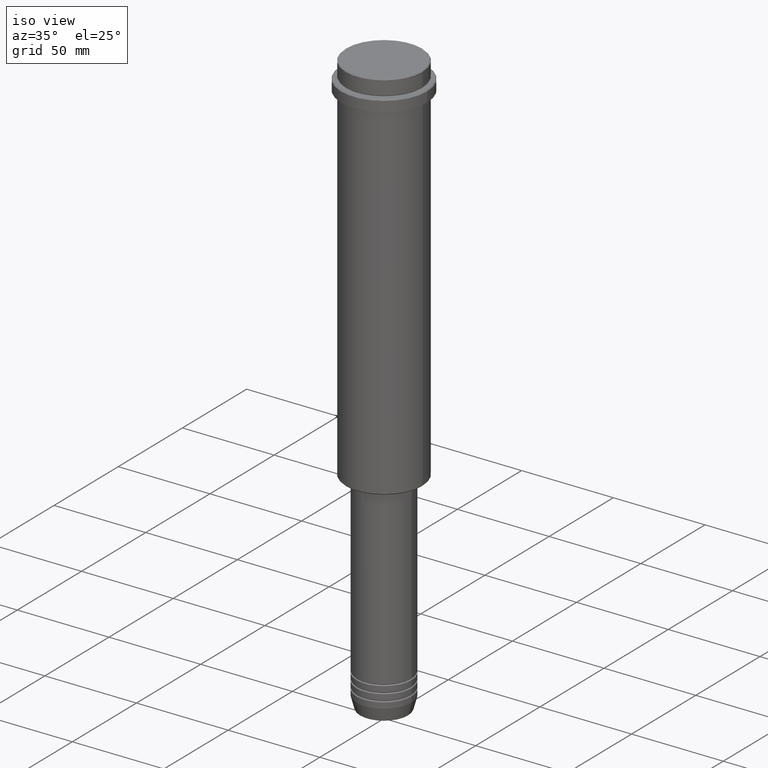
[diagram: clean part render]
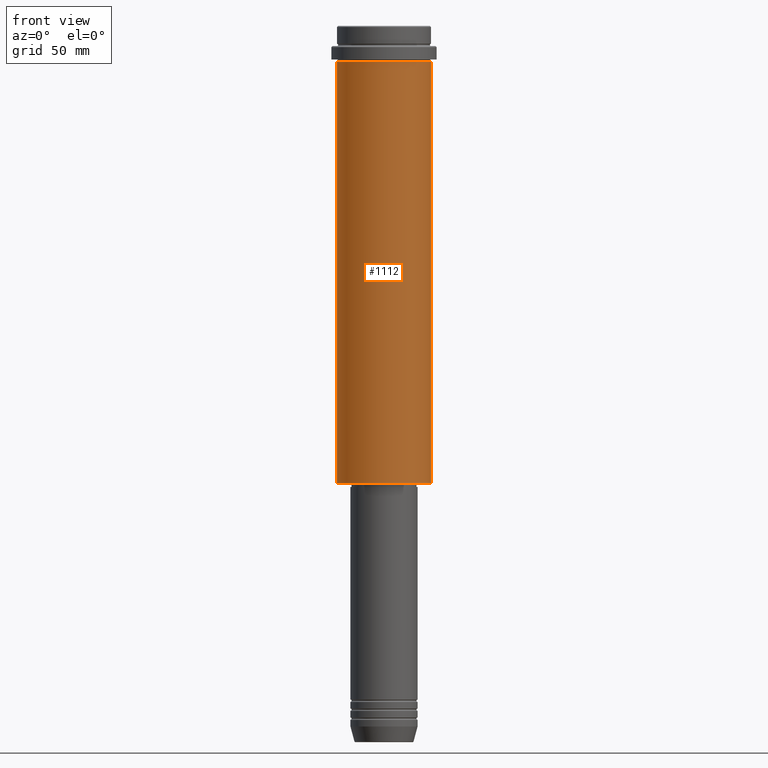
[diagram: tour spotlight — one face highlighted and labeled with its STEP entity id]
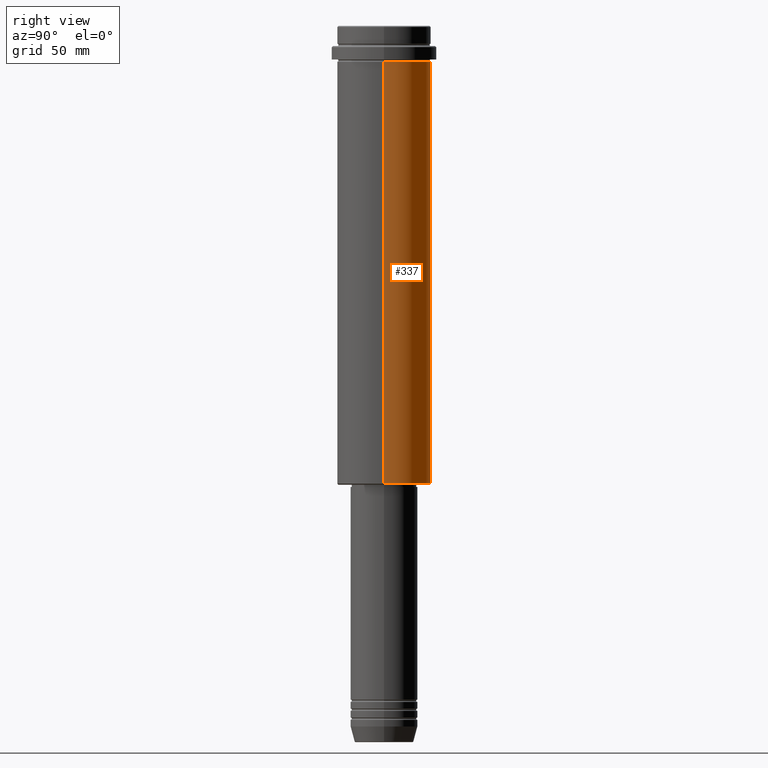
[diagram: tour spotlight — one face highlighted and labeled with its STEP entity id]
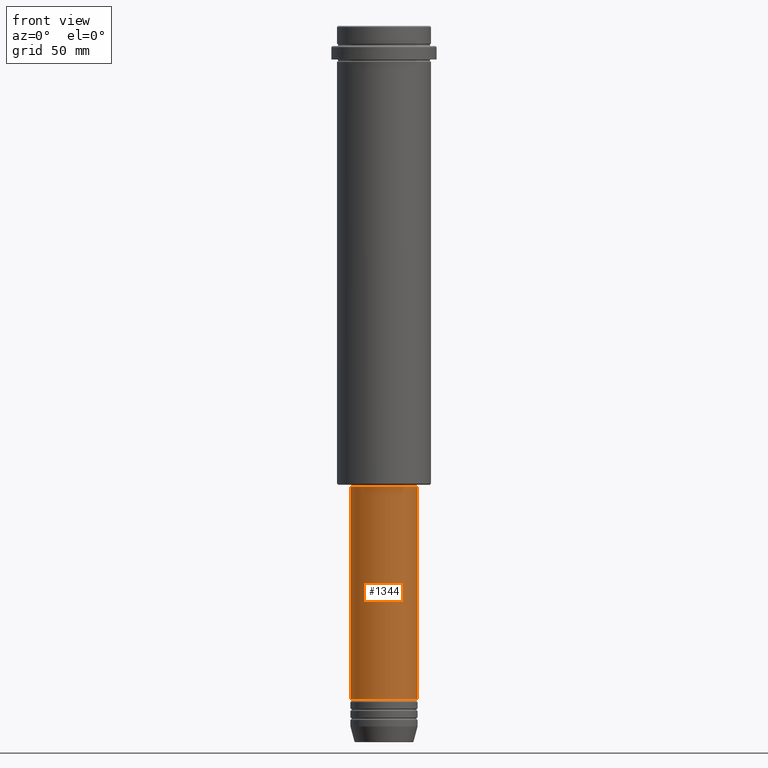
[diagram: tour spotlight — one face highlighted and labeled with its STEP entity id]
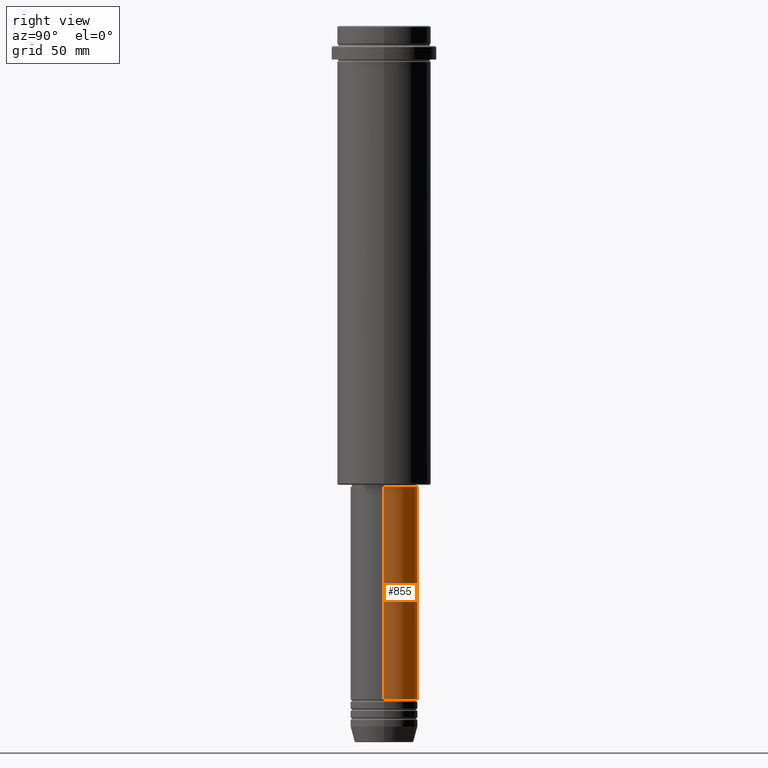
[diagram: tour spotlight — one face highlighted and labeled with its STEP entity id]
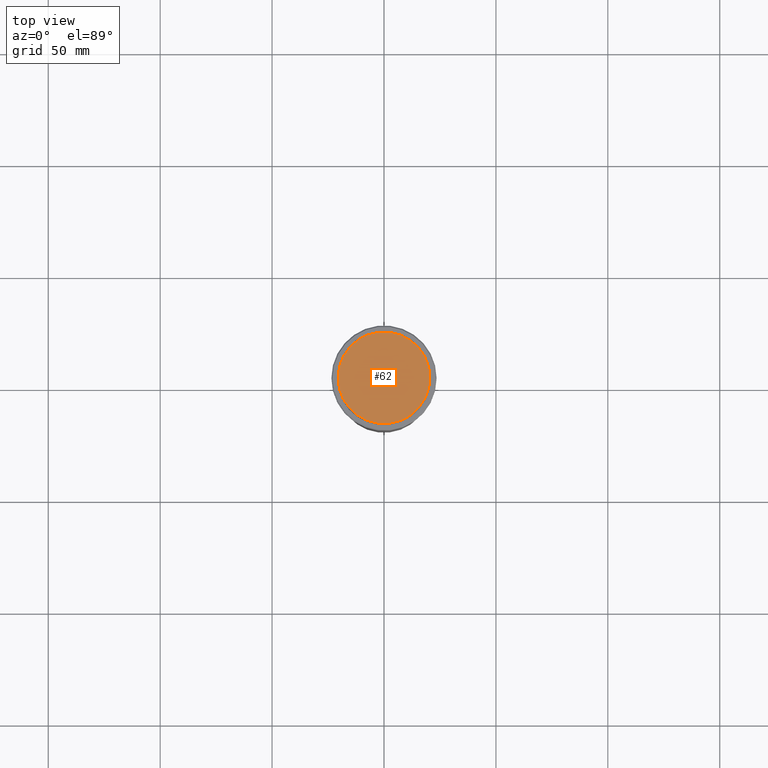
[diagram: tour spotlight — one face highlighted and labeled with its STEP entity id]
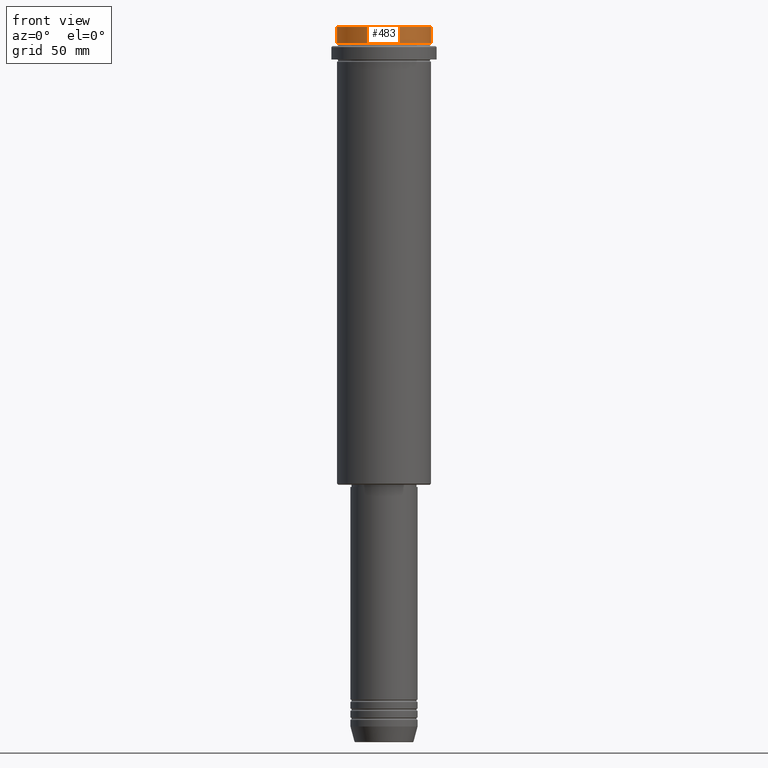
[diagram: tour spotlight — one face highlighted and labeled with its STEP entity id]
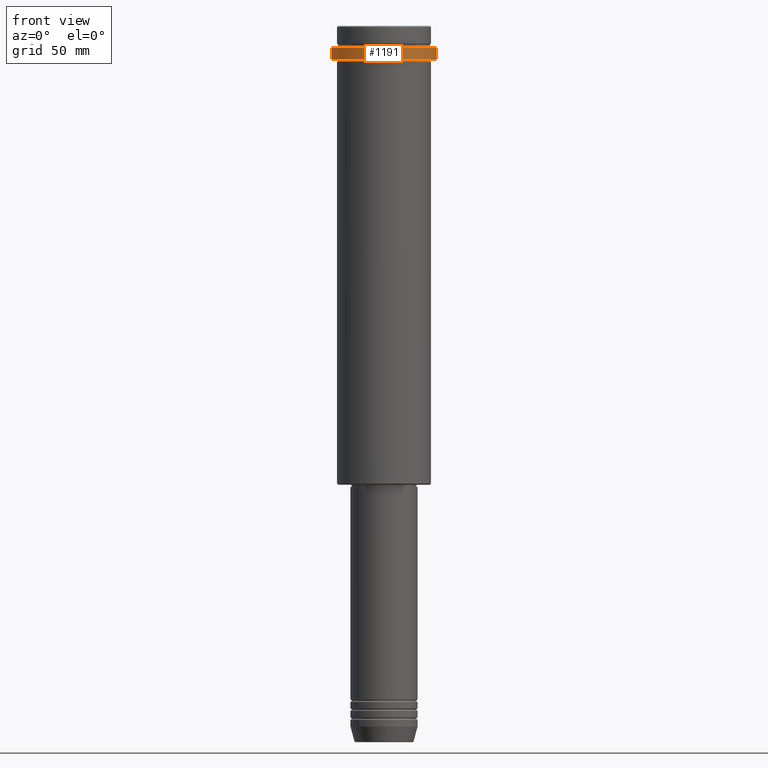
[diagram: tour spotlight — one face highlighted and labeled with its STEP entity id]
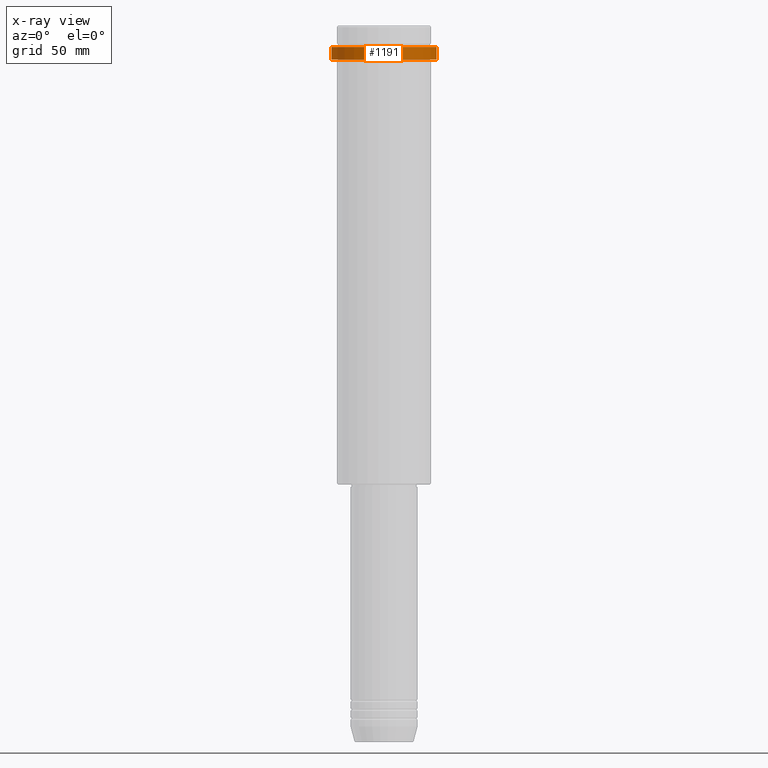
[diagram: x-ray of the same camera — body ghosted, this tour face saturated]
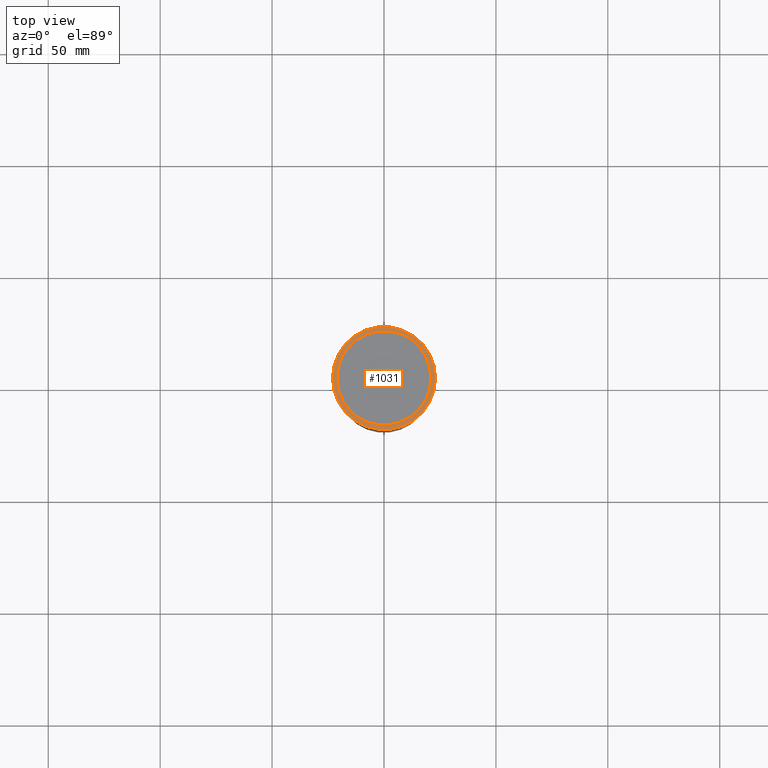
[diagram: tour spotlight — one face highlighted and labeled with its STEP entity id]
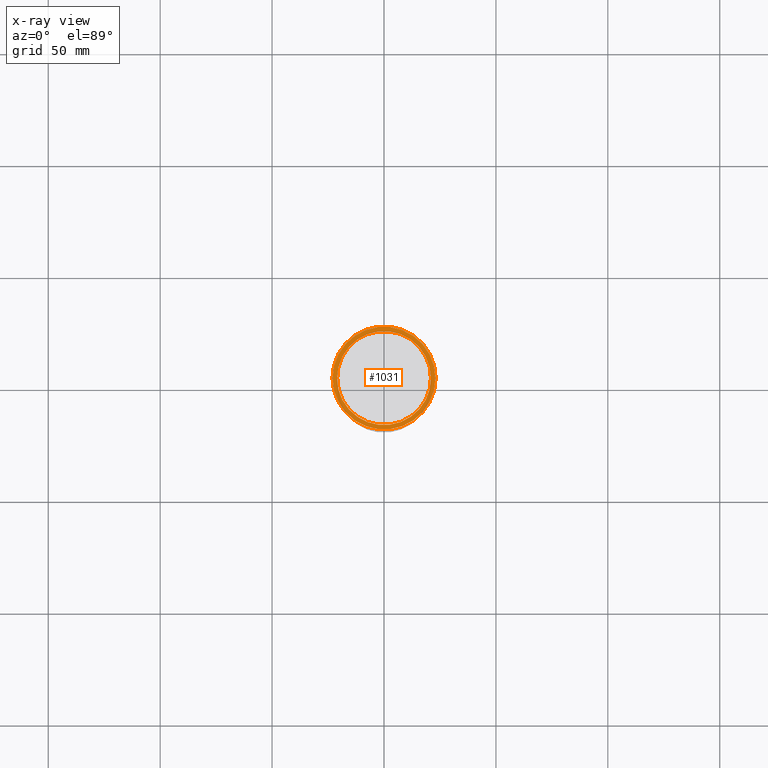
[diagram: x-ray of the same camera — body ghosted, this tour face saturated]
A machine part: a face-by-face anatomy tour. The part has 52 B-rep faces; the first image is the clean iso view, then the 8 largest visible faces are spotlighted one at a time (largest first), each with its STEP entity span.

Face 1 — front view, entity #1112. In plain terms, the highlighted cylindrical surface (partial cylindrical patch) has radius 21 mm, axis along (-0, -0, 1).
Definition (entity closure, byte-faithful):
#41 = CARTESIAN_POINT ( 'NONE',  ( 0.000000000000000000, 0.000000000000000000, -204.5000000000000568 ) ) ;
#101 = CARTESIAN_POINT ( 'NONE',  ( -20.99999999999999645, 2.571758278209441267E-15, -204.5000000000000568 ) ) ;
#136 = CARTESIAN_POINT ( 'NONE',  ( 20.99999999999999645, 0.000000000000000000, -16.00000000000000355 ) ) ;
#185 = AXIS2_PLACEMENT_3D ( 'NONE', #1127, #248, #813 ) ;
#207 = FACE_OUTER_BOUND ( 'NONE', #1076, .T. ) ;
#248 = DIRECTION ( 'NONE',  ( -0.000000000000000000, -0.000000000000000000, 1.000000000000000000 ) ) ;
#273 = VERTEX_POINT ( 'NONE', #101 ) ;
#298 = VECTOR ( 'NONE', #1151, 1000.000000000000000 ) ;
#317 = DIRECTION ( 'NONE',  ( -0.000000000000000000, -0.000000000000000000, 1.000000000000000000 ) ) ;
#369 = CARTESIAN_POINT ( 'NONE',  ( 20.99999999999999645, 0.000000000000000000, -204.5000000000000568 ) ) ;
#396 = EDGE_CURVE ( 'NONE', #273, #706, #549, .T. ) ;
#418 = LINE ( 'NONE', #784, #1399 ) ;
#454 = DIRECTION ( 'NONE',  ( -1.000000000000000000, 0.000000000000000000, 0.000000000000000000 ) ) ;
#467 = ORIENTED_EDGE ( 'NONE', *, *, #396, .T. ) ;
#475 = DIRECTION ( 'NONE',  ( 1.000000000000000000, 0.000000000000000000, 0.000000000000000000 ) ) ;
#487 = CARTESIAN_POINT ( 'NONE',  ( -20.99999999999999645, 2.571758278209441267E-15, -16.00000000000000355 ) ) ;
#549 = CIRCLE ( 'NONE', #618, 20.99999999999999645 ) ;
#573 = CIRCLE ( 'NONE', #185, 20.99999999999999645 ) ;
#618 = AXIS2_PLACEMENT_3D ( 'NONE', #41, #1230, #454 ) ;
#706 = VERTEX_POINT ( 'NONE', #369 ) ;
#739 = CARTESIAN_POINT ( 'NONE',  ( 20.99999999999999645, 0.000000000000000000, 0.000000000000000000 ) ) ;
#784 = CARTESIAN_POINT ( 'NONE',  ( -20.99999999999999645, 2.571758278209441267E-15, 0.000000000000000000 ) ) ;
#813 = DIRECTION ( 'NONE',  ( 1.000000000000000000, 0.000000000000000000, 0.000000000000000000 ) ) ;
#943 = LINE ( 'NONE', #739, #298 ) ;
#964 = EDGE_CURVE ( 'NONE', #273, #1205, #418, .T. ) ;
#992 = EDGE_CURVE ( 'NONE', #1205, #996, #573, .T. ) ;
#996 = VERTEX_POINT ( 'NONE', #136 ) ;
#1075 = CYLINDRICAL_SURFACE ( 'NONE', #1249, 20.99999999999999645 ) ;
#1076 = EDGE_LOOP ( 'NONE', ( #1091, #467, #1199, #1171 ) ) ;
#1091 = ORIENTED_EDGE ( 'NONE', *, *, #964, .F. ) ;
#1112 = ADVANCED_FACE ( 'NONE', ( #207 ), #1075, .T. ) ;
#1127 = CARTESIAN_POINT ( 'NONE',  ( 0.000000000000000000, 0.000000000000000000, -16.00000000000000355 ) ) ;
#1151 = DIRECTION ( 'NONE',  ( -0.000000000000000000, -0.000000000000000000, 1.000000000000000000 ) ) ;
#1171 = ORIENTED_EDGE ( 'NONE', *, *, #992, .F. ) ;
#1199 = ORIENTED_EDGE ( 'NONE', *, *, #1245, .T. ) ;
#1205 = VERTEX_POINT ( 'NONE', #487 ) ;
#1230 = DIRECTION ( 'NONE',  ( -0.000000000000000000, -0.000000000000000000, 1.000000000000000000 ) ) ;
#1245 = EDGE_CURVE ( 'NONE', #706, #996, #943, .T. ) ;
#1249 = AXIS2_PLACEMENT_3D ( 'NONE', #1315, #317, #475 ) ;
#1310 = DIRECTION ( 'NONE',  ( -0.000000000000000000, -0.000000000000000000, 1.000000000000000000 ) ) ;
#1315 = CARTESIAN_POINT ( 'NONE',  ( 0.000000000000000000, 0.000000000000000000, 0.000000000000000000 ) ) ;
#1399 = VECTOR ( 'NONE', #1310, 1000.000000000000000 ) ;

Face 2 — right view, entity #337. In plain terms, the highlighted cylindrical surface (partial cylindrical patch) has radius 21 mm, axis along (-0, -0, 1).
Definition (entity closure, byte-faithful):
#15 = CARTESIAN_POINT ( 'NONE',  ( 0.000000000000000000, 0.000000000000000000, -16.00000000000000355 ) ) ;
#53 = AXIS2_PLACEMENT_3D ( 'NONE', #15, #874, #1320 ) ;
#91 = EDGE_CURVE ( 'NONE', #706, #273, #1335, .T. ) ;
#101 = CARTESIAN_POINT ( 'NONE',  ( -20.99999999999999645, 2.571758278209441267E-15, -204.5000000000000568 ) ) ;
#136 = CARTESIAN_POINT ( 'NONE',  ( 20.99999999999999645, 0.000000000000000000, -16.00000000000000355 ) ) ;
#151 = CARTESIAN_POINT ( 'NONE',  ( 0.000000000000000000, 0.000000000000000000, 0.000000000000000000 ) ) ;
#160 = ORIENTED_EDGE ( 'NONE', *, *, #1175, .F. ) ;
#268 = AXIS2_PLACEMENT_3D ( 'NONE', #484, #1032, #922 ) ;
#273 = VERTEX_POINT ( 'NONE', #101 ) ;
#298 = VECTOR ( 'NONE', #1151, 1000.000000000000000 ) ;
#337 = ADVANCED_FACE ( 'NONE', ( #902 ), #446, .T. ) ;
#369 = CARTESIAN_POINT ( 'NONE',  ( 20.99999999999999645, 0.000000000000000000, -204.5000000000000568 ) ) ;
#418 = LINE ( 'NONE', #784, #1399 ) ;
#446 = CYLINDRICAL_SURFACE ( 'NONE', #707, 20.99999999999999645 ) ;
#455 = CIRCLE ( 'NONE', #53, 20.99999999999999645 ) ;
#484 = CARTESIAN_POINT ( 'NONE',  ( 0.000000000000000000, 0.000000000000000000, -204.5000000000000568 ) ) ;
#487 = CARTESIAN_POINT ( 'NONE',  ( -20.99999999999999645, 2.571758278209441267E-15, -16.00000000000000355 ) ) ;
#706 = VERTEX_POINT ( 'NONE', #369 ) ;
#707 = AXIS2_PLACEMENT_3D ( 'NONE', #151, #1338, #786 ) ;
#739 = CARTESIAN_POINT ( 'NONE',  ( 20.99999999999999645, 0.000000000000000000, 0.000000000000000000 ) ) ;
#784 = CARTESIAN_POINT ( 'NONE',  ( -20.99999999999999645, 2.571758278209441267E-15, 0.000000000000000000 ) ) ;
#786 = DIRECTION ( 'NONE',  ( 1.000000000000000000, 0.000000000000000000, 0.000000000000000000 ) ) ;
#874 = DIRECTION ( 'NONE',  ( -0.000000000000000000, -0.000000000000000000, 1.000000000000000000 ) ) ;
#902 = FACE_OUTER_BOUND ( 'NONE', #1239, .T. ) ;
#913 = ORIENTED_EDGE ( 'NONE', *, *, #1245, .F. ) ;
#922 = DIRECTION ( 'NONE',  ( -1.000000000000000000, 0.000000000000000000, 0.000000000000000000 ) ) ;
#943 = LINE ( 'NONE', #739, #298 ) ;
#964 = EDGE_CURVE ( 'NONE', #273, #1205, #418, .T. ) ;
#996 = VERTEX_POINT ( 'NONE', #136 ) ;
#1032 = DIRECTION ( 'NONE',  ( -0.000000000000000000, -0.000000000000000000, 1.000000000000000000 ) ) ;
#1077 = ORIENTED_EDGE ( 'NONE', *, *, #964, .T. ) ;
#1117 = ORIENTED_EDGE ( 'NONE', *, *, #91, .T. ) ;
#1151 = DIRECTION ( 'NONE',  ( -0.000000000000000000, -0.000000000000000000, 1.000000000000000000 ) ) ;
#1175 = EDGE_CURVE ( 'NONE', #996, #1205, #455, .T. ) ;
#1205 = VERTEX_POINT ( 'NONE', #487 ) ;
#1239 = EDGE_LOOP ( 'NONE', ( #1117, #1077, #160, #913 ) ) ;
#1245 = EDGE_CURVE ( 'NONE', #706, #996, #943, .T. ) ;
#1310 = DIRECTION ( 'NONE',  ( -0.000000000000000000, -0.000000000000000000, 1.000000000000000000 ) ) ;
#1320 = DIRECTION ( 'NONE',  ( 1.000000000000000000, 0.000000000000000000, 0.000000000000000000 ) ) ;
#1335 = CIRCLE ( 'NONE', #268, 20.99999999999999645 ) ;
#1338 = DIRECTION ( 'NONE',  ( -0.000000000000000000, -0.000000000000000000, 1.000000000000000000 ) ) ;
#1399 = VECTOR ( 'NONE', #1310, 1000.000000000000000 ) ;

Face 3 — front view, entity #1344. In plain terms, the highlighted cylindrical surface (edge-blend (fillet) strip) has radius 15 mm, axis along (-0, -0, 1).
Definition (entity closure, byte-faithful):
#21 = VERTEX_POINT ( 'NONE', #1304 ) ;
#35 = DIRECTION ( 'NONE',  ( -0.000000000000000000, -0.000000000000000000, 1.000000000000000000 ) ) ;
#76 = AXIS2_PLACEMENT_3D ( 'NONE', #962, #296, #610 ) ;
#84 = EDGE_CURVE ( 'NONE', #900, #280, #365, .T. ) ;
#128 = EDGE_LOOP ( 'NONE', ( #517, #837, #667, #893 ) ) ;
#253 = DIRECTION ( 'NONE',  ( -0.000000000000000000, -0.000000000000000000, 1.000000000000000000 ) ) ;
#275 = AXIS2_PLACEMENT_3D ( 'NONE', #620, #515, #923 ) ;
#280 = VERTEX_POINT ( 'NONE', #863 ) ;
#296 = DIRECTION ( 'NONE',  ( -0.000000000000000000, -0.000000000000000000, 1.000000000000000000 ) ) ;
#365 = LINE ( 'NONE', #1350, #976 ) ;
#376 = CYLINDRICAL_SURFACE ( 'NONE', #275, 15.00000000000000000 ) ;
#515 = DIRECTION ( 'NONE',  ( -0.000000000000000000, -0.000000000000000000, 1.000000000000000000 ) ) ;
#517 = ORIENTED_EDGE ( 'NONE', *, *, #84, .F. ) ;
#575 = CIRCLE ( 'NONE', #1226, 15.00000000000000000 ) ;
#610 = DIRECTION ( 'NONE',  ( 1.000000000000000000, 0.000000000000000000, 0.000000000000000000 ) ) ;
#620 = CARTESIAN_POINT ( 'NONE',  ( 0.000000000000000000, 0.000000000000000000, 0.000000000000000000 ) ) ;
#667 = ORIENTED_EDGE ( 'NONE', *, *, #968, .T. ) ;
#756 = CARTESIAN_POINT ( 'NONE',  ( 15.00000000000000000, 0.000000000000000000, 0.000000000000000000 ) ) ;
#764 = CARTESIAN_POINT ( 'NONE',  ( 0.000000000000000000, 0.000000000000000000, -205.9999999999999432 ) ) ;
#829 = FACE_OUTER_BOUND ( 'NONE', #128, .T. ) ;
#837 = ORIENTED_EDGE ( 'NONE', *, *, #1053, .T. ) ;
#863 = CARTESIAN_POINT ( 'NONE',  ( -15.00000000000000000, 1.836970198721029589E-15, -205.9999999999999432 ) ) ;
#867 = CARTESIAN_POINT ( 'NONE',  ( -15.00000000000000000, 1.836970198721029589E-15, -300.9999999999998863 ) ) ;
#893 = ORIENTED_EDGE ( 'NONE', *, *, #1187, .F. ) ;
#900 = VERTEX_POINT ( 'NONE', #867 ) ;
#923 = DIRECTION ( 'NONE',  ( 1.000000000000000000, 0.000000000000000000, 0.000000000000000000 ) ) ;
#962 = CARTESIAN_POINT ( 'NONE',  ( 0.000000000000000000, 0.000000000000000000, -300.9999999999998863 ) ) ;
#968 = EDGE_CURVE ( 'NONE', #21, #1301, #1228, .T. ) ;
#976 = VECTOR ( 'NONE', #253, 1000.000000000000000 ) ;
#1003 = VECTOR ( 'NONE', #35, 1000.000000000000000 ) ;
#1053 = EDGE_CURVE ( 'NONE', #900, #21, #1065, .T. ) ;
#1065 = CIRCLE ( 'NONE', #76, 15.00000000000000000 ) ;
#1132 = DIRECTION ( 'NONE',  ( 1.000000000000000000, 0.000000000000000000, 0.000000000000000000 ) ) ;
#1187 = EDGE_CURVE ( 'NONE', #280, #1301, #575, .T. ) ;
#1208 = DIRECTION ( 'NONE',  ( -0.000000000000000000, -0.000000000000000000, 1.000000000000000000 ) ) ;
#1226 = AXIS2_PLACEMENT_3D ( 'NONE', #764, #1208, #1132 ) ;
#1228 = LINE ( 'NONE', #756, #1003 ) ;
#1301 = VERTEX_POINT ( 'NONE', #1330 ) ;
#1304 = CARTESIAN_POINT ( 'NONE',  ( 15.00000000000000000, 0.000000000000000000, -300.9999999999998863 ) ) ;
#1330 = CARTESIAN_POINT ( 'NONE',  ( 15.00000000000000000, 0.000000000000000000, -205.9999999999999432 ) ) ;
#1344 = ADVANCED_FACE ( 'NONE', ( #829 ), #376, .T. ) ;
#1350 = CARTESIAN_POINT ( 'NONE',  ( -15.00000000000000000, 1.836970198721029589E-15, 0.000000000000000000 ) ) ;

Face 4 — right view, entity #855. In plain terms, the highlighted cylindrical surface (edge-blend (fillet) strip) has radius 15 mm, axis along (-0, -0, 1).
Definition (entity closure, byte-faithful):
#21 = VERTEX_POINT ( 'NONE', #1304 ) ;
#35 = DIRECTION ( 'NONE',  ( -0.000000000000000000, -0.000000000000000000, 1.000000000000000000 ) ) ;
#84 = EDGE_CURVE ( 'NONE', #900, #280, #365, .T. ) ;
#159 = AXIS2_PLACEMENT_3D ( 'NONE', #1410, #761, #1069 ) ;
#209 = CYLINDRICAL_SURFACE ( 'NONE', #159, 15.00000000000000000 ) ;
#253 = DIRECTION ( 'NONE',  ( -0.000000000000000000, -0.000000000000000000, 1.000000000000000000 ) ) ;
#264 = ORIENTED_EDGE ( 'NONE', *, *, #84, .T. ) ;
#280 = VERTEX_POINT ( 'NONE', #863 ) ;
#353 = EDGE_LOOP ( 'NONE', ( #1411, #264, #653, #501 ) ) ;
#365 = LINE ( 'NONE', #1350, #976 ) ;
#372 = DIRECTION ( 'NONE',  ( 1.000000000000000000, 0.000000000000000000, 0.000000000000000000 ) ) ;
#395 = DIRECTION ( 'NONE',  ( 1.000000000000000000, 0.000000000000000000, 0.000000000000000000 ) ) ;
#501 = ORIENTED_EDGE ( 'NONE', *, *, #968, .F. ) ;
#522 = AXIS2_PLACEMENT_3D ( 'NONE', #911, #899, #372 ) ;
#636 = EDGE_CURVE ( 'NONE', #1301, #280, #687, .T. ) ;
#653 = ORIENTED_EDGE ( 'NONE', *, *, #636, .F. ) ;
#687 = CIRCLE ( 'NONE', #522, 15.00000000000000000 ) ;
#715 = CARTESIAN_POINT ( 'NONE',  ( 0.000000000000000000, 0.000000000000000000, -300.9999999999998863 ) ) ;
#732 = CIRCLE ( 'NONE', #958, 15.00000000000000000 ) ;
#756 = CARTESIAN_POINT ( 'NONE',  ( 15.00000000000000000, 0.000000000000000000, 0.000000000000000000 ) ) ;
#761 = DIRECTION ( 'NONE',  ( -0.000000000000000000, -0.000000000000000000, 1.000000000000000000 ) ) ;
#769 = EDGE_CURVE ( 'NONE', #21, #900, #732, .T. ) ;
#855 = ADVANCED_FACE ( 'NONE', ( #960 ), #209, .T. ) ;
#863 = CARTESIAN_POINT ( 'NONE',  ( -15.00000000000000000, 1.836970198721029589E-15, -205.9999999999999432 ) ) ;
#867 = CARTESIAN_POINT ( 'NONE',  ( -15.00000000000000000, 1.836970198721029589E-15, -300.9999999999998863 ) ) ;
#899 = DIRECTION ( 'NONE',  ( -0.000000000000000000, -0.000000000000000000, 1.000000000000000000 ) ) ;
#900 = VERTEX_POINT ( 'NONE', #867 ) ;
#911 = CARTESIAN_POINT ( 'NONE',  ( 0.000000000000000000, 0.000000000000000000, -205.9999999999999432 ) ) ;
#948 = DIRECTION ( 'NONE',  ( -0.000000000000000000, -0.000000000000000000, 1.000000000000000000 ) ) ;
#958 = AXIS2_PLACEMENT_3D ( 'NONE', #715, #948, #395 ) ;
#960 = FACE_OUTER_BOUND ( 'NONE', #353, .T. ) ;
#968 = EDGE_CURVE ( 'NONE', #21, #1301, #1228, .T. ) ;
#976 = VECTOR ( 'NONE', #253, 1000.000000000000000 ) ;
#1003 = VECTOR ( 'NONE', #35, 1000.000000000000000 ) ;
#1069 = DIRECTION ( 'NONE',  ( 1.000000000000000000, 0.000000000000000000, 0.000000000000000000 ) ) ;
#1228 = LINE ( 'NONE', #756, #1003 ) ;
#1301 = VERTEX_POINT ( 'NONE', #1330 ) ;
#1304 = CARTESIAN_POINT ( 'NONE',  ( 15.00000000000000000, 0.000000000000000000, -300.9999999999998863 ) ) ;
#1330 = CARTESIAN_POINT ( 'NONE',  ( 15.00000000000000000, 0.000000000000000000, -205.9999999999999432 ) ) ;
#1350 = CARTESIAN_POINT ( 'NONE',  ( -15.00000000000000000, 1.836970198721029589E-15, 0.000000000000000000 ) ) ;
#1410 = CARTESIAN_POINT ( 'NONE',  ( 0.000000000000000000, 0.000000000000000000, 0.000000000000000000 ) ) ;
#1411 = ORIENTED_EDGE ( 'NONE', *, *, #769, .T. ) ;

Face 5 — top view, entity #62. In plain terms, the highlighted planar face has unit normal (0, -0, 1).
Definition (entity closure, byte-faithful):
#34 = ORIENTED_EDGE ( 'NONE', *, *, #1259, .T. ) ;
#62 = ADVANCED_FACE ( 'NONE', ( #1104 ), #231, .T. ) ;
#67 = CARTESIAN_POINT ( 'NONE',  ( 0.000000000000000000, 0.000000000000000000, 0.000000000000000000 ) ) ;
#133 = DIRECTION ( 'NONE',  ( 1.000000000000000000, 0.000000000000000000, 0.000000000000000000 ) ) ;
#178 = DIRECTION ( 'NONE',  ( 1.000000000000000000, 0.000000000000000000, 0.000000000000000000 ) ) ;
#206 = EDGE_CURVE ( 'NONE', #700, #696, #1041, .T. ) ;
#231 = PLANE ( 'NONE',  #910 ) ;
#239 = DIRECTION ( 'NONE',  ( 0.000000000000000000, -0.000000000000000000, 1.000000000000000000 ) ) ;
#284 = CARTESIAN_POINT ( 'NONE',  ( 0.000000000000000000, 0.000000000000000000, 0.000000000000000000 ) ) ;
#307 = EDGE_LOOP ( 'NONE', ( #1153, #34 ) ) ;
#405 = AXIS2_PLACEMENT_3D ( 'NONE', #67, #1284, #1394 ) ;
#645 = CIRCLE ( 'NONE', #405, 20.50000000000004619 ) ;
#696 = VERTEX_POINT ( 'NONE', #1248 ) ;
#700 = VERTEX_POINT ( 'NONE', #817 ) ;
#727 = DIRECTION ( 'NONE',  ( -0.000000000000000000, -0.000000000000000000, 1.000000000000000000 ) ) ;
#817 = CARTESIAN_POINT ( 'NONE',  ( -20.50000000000004619, 0.000000000000000000, 0.000000000000000000 ) ) ;
#910 = AXIS2_PLACEMENT_3D ( 'NONE', #1356, #239, #133 ) ;
#1041 = CIRCLE ( 'NONE', #1163, 20.50000000000004619 ) ;
#1104 = FACE_OUTER_BOUND ( 'NONE', #307, .T. ) ;
#1153 = ORIENTED_EDGE ( 'NONE', *, *, #206, .T. ) ;
#1163 = AXIS2_PLACEMENT_3D ( 'NONE', #284, #727, #178 ) ;
#1248 = CARTESIAN_POINT ( 'NONE',  ( 20.50000000000004619, 2.541142108230760635E-15, 0.000000000000000000 ) ) ;
#1259 = EDGE_CURVE ( 'NONE', #696, #700, #645, .T. ) ;
#1284 = DIRECTION ( 'NONE',  ( -0.000000000000000000, -0.000000000000000000, 1.000000000000000000 ) ) ;
#1356 = CARTESIAN_POINT ( 'NONE',  ( 0.000000000000000000, 0.000000000000000000, 0.000000000000000000 ) ) ;
#1394 = DIRECTION ( 'NONE',  ( 1.000000000000000000, 0.000000000000000000, 0.000000000000000000 ) ) ;

Face 6 — front view, entity #483. In plain terms, the highlighted cylindrical surface (partial cylindrical patch) has radius 21 mm, axis along (-0, -0, 1).
Definition (entity closure, byte-faithful):
#25 = EDGE_LOOP ( 'NONE', ( #350, #1216, #797, #426 ) ) ;
#26 = VECTOR ( 'NONE', #158, 1000.000000000000000 ) ;
#31 = CARTESIAN_POINT ( 'NONE',  ( 0.000000000000000000, 0.000000000000000000, -7.999999999999998224 ) ) ;
#65 = CARTESIAN_POINT ( 'NONE',  ( -20.99999999999999645, 2.571758278209441267E-15, 0.000000000000000000 ) ) ;
#86 = CARTESIAN_POINT ( 'NONE',  ( 0.000000000000000000, 0.000000000000000000, -0.4999999999999518718 ) ) ;
#90 = AXIS2_PLACEMENT_3D ( 'NONE', #86, #957, #1181 ) ;
#119 = VERTEX_POINT ( 'NONE', #598 ) ;
#138 = CIRCLE ( 'NONE', #90, 20.99999999999999645 ) ;
#156 = EDGE_CURVE ( 'NONE', #682, #1307, #1390, .T. ) ;
#158 = DIRECTION ( 'NONE',  ( -0.000000000000000000, -0.000000000000000000, 1.000000000000000000 ) ) ;
#170 = EDGE_CURVE ( 'NONE', #119, #830, #489, .T. ) ;
#171 = DIRECTION ( 'NONE',  ( -0.000000000000000000, -0.000000000000000000, 1.000000000000000000 ) ) ;
#243 = EDGE_CURVE ( 'NONE', #830, #1307, #138, .T. ) ;
#267 = CARTESIAN_POINT ( 'NONE',  ( 0.000000000000000000, 0.000000000000000000, 0.000000000000000000 ) ) ;
#350 = ORIENTED_EDGE ( 'NONE', *, *, #156, .F. ) ;
#357 = CARTESIAN_POINT ( 'NONE',  ( -20.99999999999999645, 2.571758278209441267E-15, -7.999999999999998224 ) ) ;
#426 = ORIENTED_EDGE ( 'NONE', *, *, #243, .T. ) ;
#483 = ADVANCED_FACE ( 'NONE', ( #1262 ), #617, .T. ) ;
#489 = LINE ( 'NONE', #1026, #26 ) ;
#533 = CARTESIAN_POINT ( 'NONE',  ( -20.99999999999999645, 2.571758278209441267E-15, -0.4999999999999518718 ) ) ;
#598 = CARTESIAN_POINT ( 'NONE',  ( 20.99999999999999645, 0.000000000000000000, -7.999999999999998224 ) ) ;
#600 = CIRCLE ( 'NONE', #713, 20.99999999999999645 ) ;
#606 = DIRECTION ( 'NONE',  ( 1.000000000000000000, 0.000000000000000000, 0.000000000000000000 ) ) ;
#617 = CYLINDRICAL_SURFACE ( 'NONE', #1088, 20.99999999999999645 ) ;
#635 = CARTESIAN_POINT ( 'NONE',  ( 20.99999999999999645, 0.000000000000000000, -0.4999999999999518718 ) ) ;
#637 = VECTOR ( 'NONE', #703, 1000.000000000000000 ) ;
#682 = VERTEX_POINT ( 'NONE', #357 ) ;
#703 = DIRECTION ( 'NONE',  ( -0.000000000000000000, -0.000000000000000000, 1.000000000000000000 ) ) ;
#713 = AXIS2_PLACEMENT_3D ( 'NONE', #31, #1136, #1341 ) ;
#797 = ORIENTED_EDGE ( 'NONE', *, *, #170, .T. ) ;
#830 = VERTEX_POINT ( 'NONE', #635 ) ;
#957 = DIRECTION ( 'NONE',  ( 0.000000000000000000, 0.000000000000000000, -1.000000000000000000 ) ) ;
#1026 = CARTESIAN_POINT ( 'NONE',  ( 20.99999999999999645, 0.000000000000000000, 0.000000000000000000 ) ) ;
#1088 = AXIS2_PLACEMENT_3D ( 'NONE', #267, #171, #606 ) ;
#1136 = DIRECTION ( 'NONE',  ( -0.000000000000000000, -0.000000000000000000, 1.000000000000000000 ) ) ;
#1181 = DIRECTION ( 'NONE',  ( 1.000000000000000000, 0.000000000000000000, 0.000000000000000000 ) ) ;
#1216 = ORIENTED_EDGE ( 'NONE', *, *, #1322, .T. ) ;
#1262 = FACE_OUTER_BOUND ( 'NONE', #25, .T. ) ;
#1307 = VERTEX_POINT ( 'NONE', #533 ) ;
#1322 = EDGE_CURVE ( 'NONE', #682, #119, #600, .T. ) ;
#1341 = DIRECTION ( 'NONE',  ( 1.000000000000000000, 0.000000000000000000, 0.000000000000000000 ) ) ;
#1390 = LINE ( 'NONE', #65, #637 ) ;

Face 7 — front view, entity #1191. An x-ray twin of the same camera follows (body ghosted, this face saturated) — the face is partly hidden behind the body. In plain terms, the highlighted cylindrical surface (partial cylindrical patch) has radius 23.5 mm, axis along (-0, -0, 1).
Definition (entity closure, byte-faithful):
#6 = CARTESIAN_POINT ( 'NONE',  ( 23.50000000000000355, 0.000000000000000000, -15.00000000000000178 ) ) ;
#37 = CARTESIAN_POINT ( 'NONE',  ( -23.50000000000000711, 2.877919977996281109E-15, -15.00000000000000178 ) ) ;
#45 = CYLINDRICAL_SURFACE ( 'NONE', #1168, 23.50000000000000000 ) ;
#81 = CARTESIAN_POINT ( 'NONE',  ( 23.50000000000000000, 0.000000000000000000, -9.499999999999973355 ) ) ;
#103 = EDGE_LOOP ( 'NONE', ( #208, #1258, #812, #1319 ) ) ;
#155 = DIRECTION ( 'NONE',  ( 1.000000000000000000, 0.000000000000000000, 0.000000000000000000 ) ) ;
#202 = AXIS2_PLACEMENT_3D ( 'NONE', #751, #982, #259 ) ;
#208 = ORIENTED_EDGE ( 'NONE', *, *, #741, .F. ) ;
#221 = VERTEX_POINT ( 'NONE', #6 ) ;
#230 = AXIS2_PLACEMENT_3D ( 'NONE', #1374, #629, #1039 ) ;
#238 = CARTESIAN_POINT ( 'NONE',  ( -23.50000000000000000, 2.877919977996280320E-15, -9.499999999999973355 ) ) ;
#259 = DIRECTION ( 'NONE',  ( 1.000000000000000000, 0.000000000000000000, 0.000000000000000000 ) ) ;
#287 = DIRECTION ( 'NONE',  ( -0.000000000000000000, -0.000000000000000000, 1.000000000000000000 ) ) ;
#408 = VERTEX_POINT ( 'NONE', #238 ) ;
#470 = DIRECTION ( 'NONE',  ( -0.000000000000000000, -0.000000000000000000, 1.000000000000000000 ) ) ;
#624 = LINE ( 'NONE', #729, #1376 ) ;
#629 = DIRECTION ( 'NONE',  ( -0.000000000000000000, -0.000000000000000000, 1.000000000000000000 ) ) ;
#724 = EDGE_CURVE ( 'NONE', #221, #772, #954, .T. ) ;
#729 = CARTESIAN_POINT ( 'NONE',  ( -23.50000000000000000, 2.877919977996280320E-15, 0.000000000000000000 ) ) ;
#735 = DIRECTION ( 'NONE',  ( -0.000000000000000000, -0.000000000000000000, 1.000000000000000000 ) ) ;
#741 = EDGE_CURVE ( 'NONE', #1126, #408, #624, .T. ) ;
#751 = CARTESIAN_POINT ( 'NONE',  ( 0.000000000000000000, 0.000000000000000000, -9.499999999999973355 ) ) ;
#772 = VERTEX_POINT ( 'NONE', #81 ) ;
#802 = VECTOR ( 'NONE', #287, 1000.000000000000000 ) ;
#812 = ORIENTED_EDGE ( 'NONE', *, *, #724, .T. ) ;
#940 = CIRCLE ( 'NONE', #230, 23.50000000000000355 ) ;
#954 = LINE ( 'NONE', #1404, #802 ) ;
#982 = DIRECTION ( 'NONE',  ( 0.000000000000000000, 0.000000000000000000, -1.000000000000000000 ) ) ;
#1039 = DIRECTION ( 'NONE',  ( 1.000000000000000000, 0.000000000000000000, 0.000000000000000000 ) ) ;
#1119 = CARTESIAN_POINT ( 'NONE',  ( 0.000000000000000000, 0.000000000000000000, 0.000000000000000000 ) ) ;
#1126 = VERTEX_POINT ( 'NONE', #37 ) ;
#1147 = CIRCLE ( 'NONE', #202, 23.50000000000000000 ) ;
#1168 = AXIS2_PLACEMENT_3D ( 'NONE', #1119, #470, #155 ) ;
#1191 = ADVANCED_FACE ( 'NONE', ( #1270 ), #45, .T. ) ;
#1258 = ORIENTED_EDGE ( 'NONE', *, *, #1276, .T. ) ;
#1270 = FACE_OUTER_BOUND ( 'NONE', #103, .T. ) ;
#1276 = EDGE_CURVE ( 'NONE', #1126, #221, #940, .T. ) ;
#1314 = EDGE_CURVE ( 'NONE', #772, #408, #1147, .T. ) ;
#1319 = ORIENTED_EDGE ( 'NONE', *, *, #1314, .T. ) ;
#1374 = CARTESIAN_POINT ( 'NONE',  ( 0.000000000000000000, 0.000000000000000000, -15.00000000000000178 ) ) ;
#1376 = VECTOR ( 'NONE', #735, 1000.000000000000000 ) ;
#1404 = CARTESIAN_POINT ( 'NONE',  ( 23.50000000000000000, 0.000000000000000000, 0.000000000000000000 ) ) ;

Face 8 — top view, entity #1031. An x-ray twin of the same camera follows (body ghosted, this face saturated) — the face is partly hidden behind the body. In plain terms, the highlighted planar face has unit normal (0, -0, 1).
Definition (entity closure, byte-faithful):
#2 = DIRECTION ( 'NONE',  ( 1.000000000000000000, 0.000000000000000000, 0.000000000000000000 ) ) ;
#8 = AXIS2_PLACEMENT_3D ( 'NONE', #172, #975, #2 ) ;
#36 = DIRECTION ( 'NONE',  ( 0.000000000000000000, 0.000000000000000000, -1.000000000000000000 ) ) ;
#42 = VERTEX_POINT ( 'NONE', #318 ) ;
#139 = CARTESIAN_POINT ( 'NONE',  ( 0.000000000000000000, 0.000000000000000000, -9.000000000000001776 ) ) ;
#150 = DIRECTION ( 'NONE',  ( 1.000000000000000000, 0.000000000000000000, 0.000000000000000000 ) ) ;
#162 = AXIS2_PLACEMENT_3D ( 'NONE', #804, #1252, #150 ) ;
#172 = CARTESIAN_POINT ( 'NONE',  ( 0.000000000000000000, 0.000000000000000000, -9.000000000000001776 ) ) ;
#235 = EDGE_CURVE ( 'NONE', #1274, #42, #979, .T. ) ;
#260 = EDGE_LOOP ( 'NONE', ( #590, #505 ) ) ;
#293 = EDGE_LOOP ( 'NONE', ( #1212, #1347 ) ) ;
#315 = AXIS2_PLACEMENT_3D ( 'NONE', #1281, #1180, #504 ) ;
#318 = CARTESIAN_POINT ( 'NONE',  ( -20.99999999999999289, 2.571758278209440872E-15, -9.000000000000001776 ) ) ;
#431 = DIRECTION ( 'NONE',  ( 0.000000000000000000, 0.000000000000000000, -1.000000000000000000 ) ) ;
#459 = DIRECTION ( 'NONE',  ( 1.000000000000000000, 0.000000000000000000, 0.000000000000000000 ) ) ;
#461 = EDGE_CURVE ( 'NONE', #42, #1274, #1396, .T. ) ;
#497 = AXIS2_PLACEMENT_3D ( 'NONE', #139, #36, #459 ) ;
#504 = DIRECTION ( 'NONE',  ( 1.000000000000000000, 0.000000000000000000, 0.000000000000000000 ) ) ;
#505 = ORIENTED_EDGE ( 'NONE', *, *, #461, .T. ) ;
#590 = ORIENTED_EDGE ( 'NONE', *, *, #235, .T. ) ;
#604 = VERTEX_POINT ( 'NONE', #885 ) ;
#717 = PLANE ( 'NONE',  #315 ) ;
#800 = AXIS2_PLACEMENT_3D ( 'NONE', #970, #431, #1176 ) ;
#804 = CARTESIAN_POINT ( 'NONE',  ( 0.000000000000000000, 0.000000000000000000, -9.000000000000001776 ) ) ;
#885 = CARTESIAN_POINT ( 'NONE',  ( -23.00000000000002487, 0.000000000000000000, -9.000000000000001776 ) ) ;
#938 = CIRCLE ( 'NONE', #162, 23.00000000000002487 ) ;
#970 = CARTESIAN_POINT ( 'NONE',  ( 0.000000000000000000, 0.000000000000000000, -9.000000000000001776 ) ) ;
#975 = DIRECTION ( 'NONE',  ( -0.000000000000000000, -0.000000000000000000, 1.000000000000000000 ) ) ;
#979 = CIRCLE ( 'NONE', #800, 20.99999999999999289 ) ;
#986 = VERTEX_POINT ( 'NONE', #1108 ) ;
#1011 = FACE_OUTER_BOUND ( 'NONE', #293, .T. ) ;
#1018 = EDGE_CURVE ( 'NONE', #604, #986, #938, .T. ) ;
#1031 = ADVANCED_FACE ( 'NONE', ( #1011, #1055 ), #717, .T. ) ;
#1055 = FACE_BOUND ( 'NONE', #260, .T. ) ;
#1108 = CARTESIAN_POINT ( 'NONE',  ( 23.00000000000002487, 2.847303808017597717E-15, -9.000000000000001776 ) ) ;
#1161 = CARTESIAN_POINT ( 'NONE',  ( 20.99999999999999289, 0.000000000000000000, -9.000000000000001776 ) ) ;
#1169 = EDGE_CURVE ( 'NONE', #986, #604, #1340, .T. ) ;
#1176 = DIRECTION ( 'NONE',  ( 1.000000000000000000, 0.000000000000000000, 0.000000000000000000 ) ) ;
#1180 = DIRECTION ( 'NONE',  ( 0.000000000000000000, -0.000000000000000000, 1.000000000000000000 ) ) ;
#1212 = ORIENTED_EDGE ( 'NONE', *, *, #1018, .T. ) ;
#1252 = DIRECTION ( 'NONE',  ( -0.000000000000000000, -0.000000000000000000, 1.000000000000000000 ) ) ;
#1274 = VERTEX_POINT ( 'NONE', #1161 ) ;
#1281 = CARTESIAN_POINT ( 'NONE',  ( 0.000000000000000000, 20.49999999999999645, -9.000000000000001776 ) ) ;
#1340 = CIRCLE ( 'NONE', #8, 23.00000000000002487 ) ;
#1347 = ORIENTED_EDGE ( 'NONE', *, *, #1169, .T. ) ;
#1396 = CIRCLE ( 'NONE', #497, 20.99999999999999289 ) ;